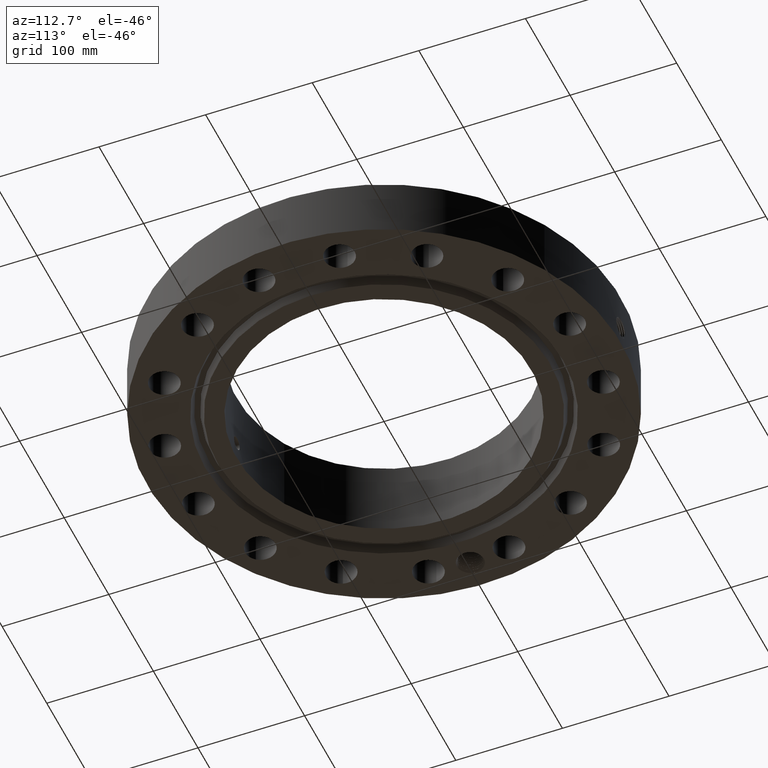
[diagram: clean part render]
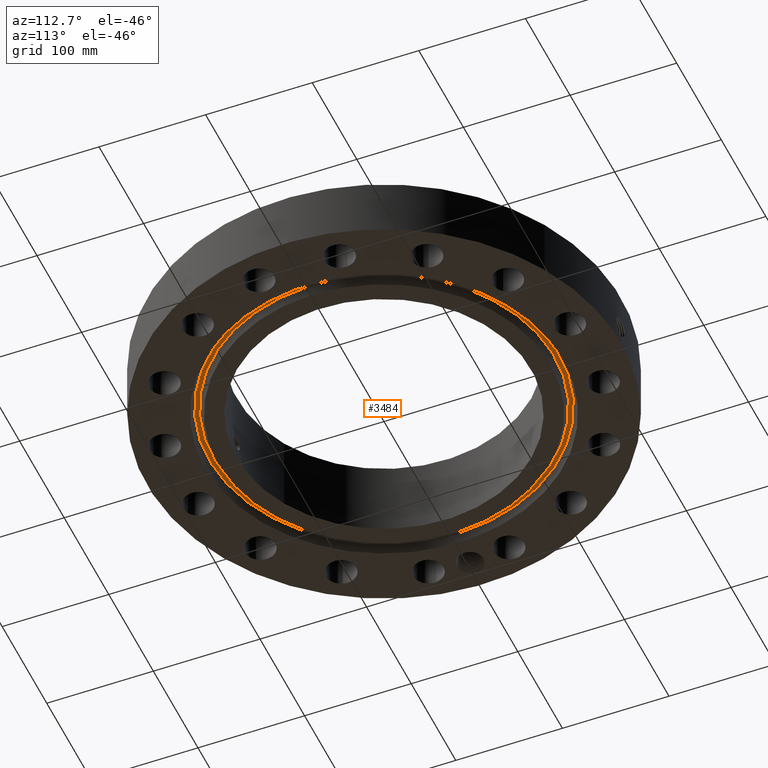
[diagram: same view with one face highlighted and labeled with its STEP entity id]
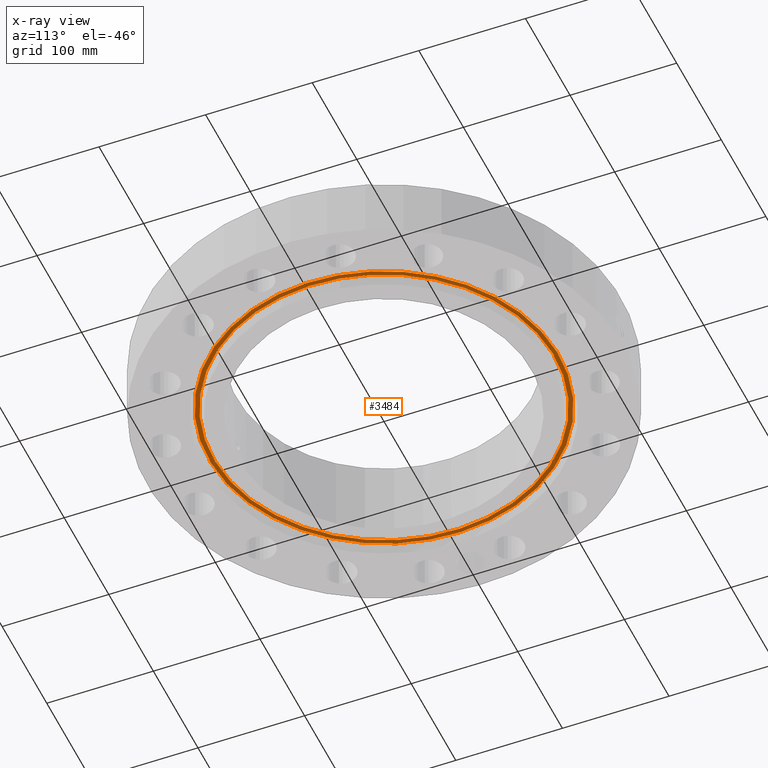
[diagram: x-ray of the same camera — body ghosted, the highlighted face saturated]
A machine part, auxiliary view. The second image highlights one B-rep face of the part: STEP entity #3484.
The next image is the same camera in x-ray: the body ghosted, the highlighted face saturated — about 0% of this face is hidden behind the body in this view.
In plain terms, the highlighted planar face has unit normal (0, 0, 1).
Its self-contained STEP definition (entity closure, byte-faithful):
#2733=AXIS2_PLACEMENT_3D('Circle Axis2P3D',#2731,#2732,$) ;
#2752=AXIS2_PLACEMENT_3D('Circle Axis2P3D',#2750,#2751,$) ;
#3460=AXIS2_PLACEMENT_3D('Plane Axis2P3D',#3457,#3458,#3459) ;
#3468=AXIS2_PLACEMENT_3D('Circle Axis2P3D',#3466,#3467,$) ;
#3477=AXIS2_PLACEMENT_3D('Circle Axis2P3D',#3475,#3476,$) ;
#2728=CARTESIAN_POINT('Vertex',(-3.09522925423,5.66577914576,0.313000000001)) ;
#2731=CARTESIAN_POINT('Axis2P3D Location',(0.,0.,0.313000000001)) ;
#2735=CARTESIAN_POINT('Vertex',(3.09522925423,-5.66577914576,0.313000000001)) ;
#2750=CARTESIAN_POINT('Axis2P3D Location',(0.,0.,0.313000000001)) ;
#3457=CARTESIAN_POINT('Axis2P3D Location',(0.,6.2938790699,0.313000000001)) ;
#3466=CARTESIAN_POINT('Axis2P3D Location',(0.,0.,0.313000000001)) ;
#3470=CARTESIAN_POINT('Vertex',(3.01744636299,-5.52339851839,0.313000000001)) ;
#3472=CARTESIAN_POINT('Vertex',(-3.01744636299,5.52339851839,0.313000000001)) ;
#3475=CARTESIAN_POINT('Axis2P3D Location',(0.,0.,0.313000000001)) ;
#2732=DIRECTION('Axis2P3D Direction',(0.,0.,0.0393700787402)) ;
#2751=DIRECTION('Axis2P3D Direction',(0.,0.,0.0393700787402)) ;
#3458=DIRECTION('Axis2P3D Direction',(0.,0.,0.0393700787402)) ;
#3459=DIRECTION('Axis2P3D XDirection',(0.0393700787402,0.,0.)) ;
#3467=DIRECTION('Axis2P3D Direction',(0.,0.,0.0393700787402)) ;
#3476=DIRECTION('Axis2P3D Direction',(0.,0.,0.0393700787402)) ;
#3463=ORIENTED_EDGE('',*,*,#2737,.F.) ;
#3464=ORIENTED_EDGE('',*,*,#2754,.F.) ;
#3481=ORIENTED_EDGE('',*,*,#3474,.T.) ;
#3482=ORIENTED_EDGE('',*,*,#3479,.T.) ;
#3483=FACE_BOUND('',#3480,.T.) ;
#3484=ADVANCED_FACE('PartBody',(#3465,#3483),#3461,.F.) ;
#2734=CIRCLE('generated circle',#2733,6.45612093016) ;
#2753=CIRCLE('generated circle',#2752,6.45612093016) ;
#3469=CIRCLE('generated circle',#3468,6.2938790699) ;
#3478=CIRCLE('generated circle',#3477,6.2938790699) ;
#2737=EDGE_CURVE('',#2729,#2736,#2734,.T.) ;
#2754=EDGE_CURVE('',#2736,#2729,#2753,.T.) ;
#3474=EDGE_CURVE('',#3471,#3473,#3469,.T.) ;
#3479=EDGE_CURVE('',#3473,#3471,#3478,.T.) ;
#3462=EDGE_LOOP('',(#3463,#3464)) ;
#3480=EDGE_LOOP('',(#3481,#3482)) ;
#3465=FACE_OUTER_BOUND('',#3462,.T.) ;
#3461=PLANE('',#3460) ;
#2729=VERTEX_POINT('',#2728) ;
#2736=VERTEX_POINT('',#2735) ;
#3471=VERTEX_POINT('',#3470) ;
#3473=VERTEX_POINT('',#3472) ;